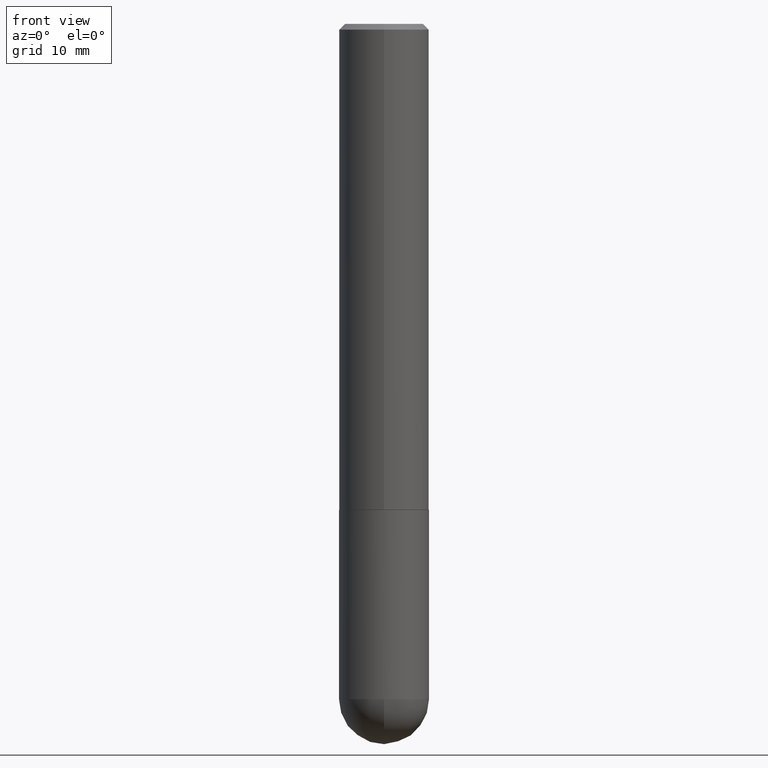
[diagram: clean part render]
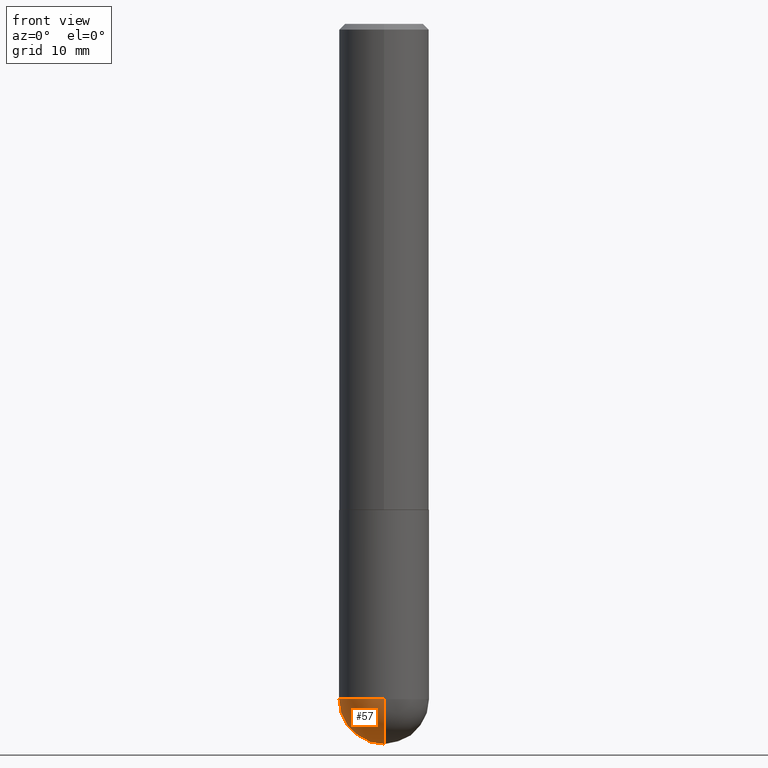
[diagram: same view with one face highlighted and labeled with its STEP entity id]
A machine part, front view. The second image highlights one B-rep face of the part: STEP entity #57.
In plain terms, the highlighted spherical surface has radius 3.9688 mm.
Its self-contained STEP definition (entity closure, byte-faithful):
#15 = DIRECTION ( 'NONE',  ( -2.445468806185136597E-29, 3.491481338843145583E-15, 1.000000000000000000 ) ) ;
#22 = ORIENTED_EDGE ( 'NONE', *, *, #251, .F. ) ;
#24 = CARTESIAN_POINT ( 'NONE',  ( -0.1562500000000000000, -5.926421178645850396E-15, -2.343750000000000000 ) ) ;
#44 = SPHERICAL_SURFACE ( 'NONE', #389, 0.1562500000000002498 ) ;
#57 = ADVANCED_FACE ( 'NONE', ( #106 ), #44, .T. ) ;
#62 = VERTEX_POINT ( 'NONE', #71 ) ;
#68 = DIRECTION ( 'NONE',  ( 1.000000000000000000, -6.982962677686262766E-15, 0.000000000000000000 ) ) ;
#71 = CARTESIAN_POINT ( 'NONE',  ( 1.091087918388535577E-15, 0.1562499999999916733, -2.343750000000000444 ) ) ;
#106 = FACE_OUTER_BOUND ( 'NONE', #194, .T. ) ;
#114 = DIRECTION ( 'NONE',  ( -7.105427357601000281E-15, -1.000000000000000000, 0.000000000000000000 ) ) ;
#117 = DIRECTION ( 'NONE',  ( 1.000000000000000000, -6.982962677686265922E-15, 4.883557194083112340E-29 ) ) ;
#137 = EDGE_CURVE ( 'NONE', #372, #219, #322, .T. ) ;
#147 = CARTESIAN_POINT ( 'NONE',  ( 5.400447736582527652E-29, -8.657341756053672891E-15, -2.343750000000000000 ) ) ;
#154 = AXIS2_PLACEMENT_3D ( 'NONE', #388, #203, #68 ) ;
#167 = DIRECTION ( 'NONE',  ( 6.982962677686265922E-15, 1.000000000000000000, -3.496765431890251398E-15 ) ) ;
#169 = CIRCLE ( 'NONE', #330, 0.1562500000000002498 ) ;
#179 = EDGE_CURVE ( 'NONE', #409, #219, #198, .T. ) ;
#181 = CIRCLE ( 'NONE', #316, 0.1562500000000000000 ) ;
#192 = ORIENTED_EDGE ( 'NONE', *, *, #137, .F. ) ;
#194 = EDGE_LOOP ( 'NONE', ( #22, #277, #192, #290 ) ) ;
#198 = CIRCLE ( 'NONE', #291, 0.1562500000000002498 ) ;
#203 = DIRECTION ( 'NONE',  ( -2.445468806185136597E-29, 3.491481338843145583E-15, 1.000000000000000000 ) ) ;
#205 = DIRECTION ( 'NONE',  ( -1.000000000000000000, 6.982962677686265922E-15, -4.883557194083112340E-29 ) ) ;
#219 = VERTEX_POINT ( 'NONE', #237 ) ;
#237 = CARTESIAN_POINT ( 'NONE',  ( -1.110223024625101517E-15, -0.1562500000000085487, -2.343749999999999556 ) ) ;
#251 = EDGE_CURVE ( 'NONE', #409, #62, #169, .T. ) ;
#264 = EDGE_CURVE ( 'NONE', #62, #372, #181, .T. ) ;
#277 = ORIENTED_EDGE ( 'NONE', *, *, #179, .T. ) ;
#278 = DIRECTION ( 'NONE',  ( 1.000000000000000000, -6.982962677686262766E-15, 0.000000000000000000 ) ) ;
#281 = DIRECTION ( 'NONE',  ( -1.000000000000000000, 7.105427357601001070E-15, -4.926315508542082329E-29 ) ) ;
#290 = ORIENTED_EDGE ( 'NONE', *, *, #264, .F. ) ;
#291 = AXIS2_PLACEMENT_3D ( 'NONE', #147, #281, #114 ) ;
#316 = AXIS2_PLACEMENT_3D ( 'NONE', #335, #15, #278 ) ;
#322 = CIRCLE ( 'NONE', #154, 0.1562500000000000000 ) ;
#330 = AXIS2_PLACEMENT_3D ( 'NONE', #331, #117, #362 ) ;
#331 = CARTESIAN_POINT ( 'NONE',  ( 5.400447736582527652E-29, -8.657341756053672891E-15, -2.343750000000000000 ) ) ;
#335 = CARTESIAN_POINT ( 'NONE',  ( 5.731567514496413899E-29, -8.183159387913622595E-15, -2.343750000000000000 ) ) ;
#352 = CARTESIAN_POINT ( 'NONE',  ( 5.400447736582527652E-29, -8.657341756053672891E-15, -2.343750000000000000 ) ) ;
#362 = DIRECTION ( 'NONE',  ( 6.982962677686265922E-15, 1.000000000000000000, 0.000000000000000000 ) ) ;
#372 = VERTEX_POINT ( 'NONE', #24 ) ;
#379 = CARTESIAN_POINT ( 'NONE',  ( 5.789233224183170584E-29, -9.193318162129576161E-15, -2.500000000000000000 ) ) ;
#388 = CARTESIAN_POINT ( 'NONE',  ( 5.731567514496413899E-29, -8.183159387913622595E-15, -2.343750000000000000 ) ) ;
#389 = AXIS2_PLACEMENT_3D ( 'NONE', #352, #205, #167 ) ;
#409 = VERTEX_POINT ( 'NONE', #379 ) ;